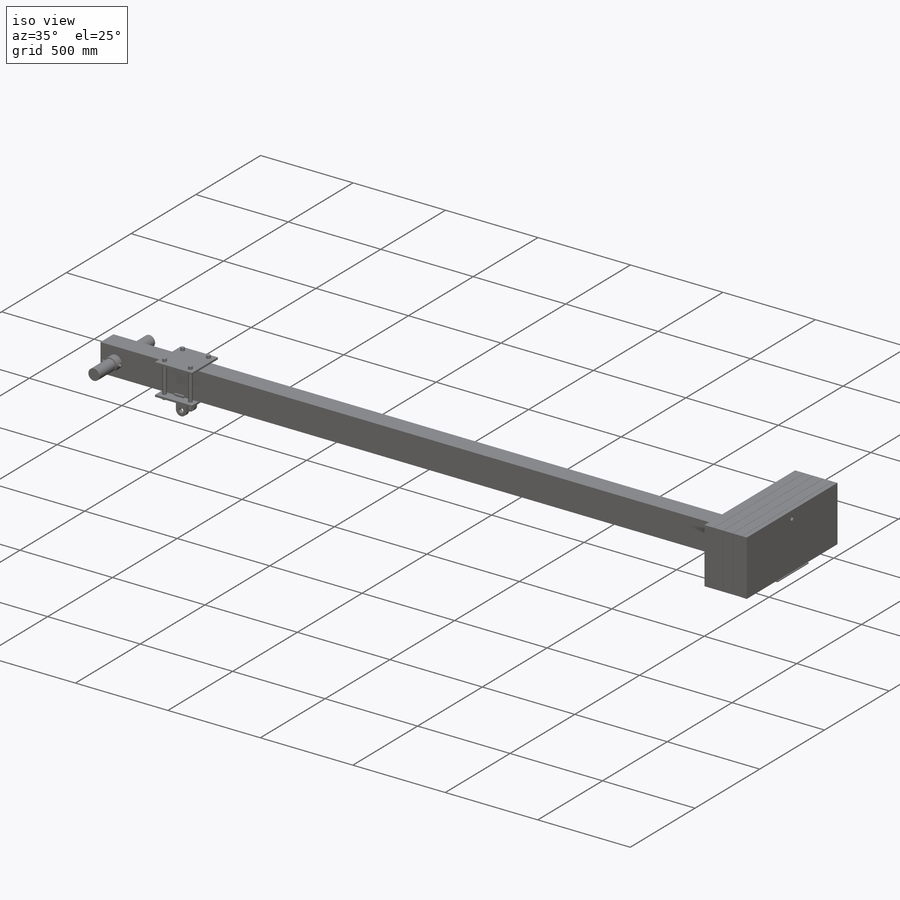
[diagram: iso view]
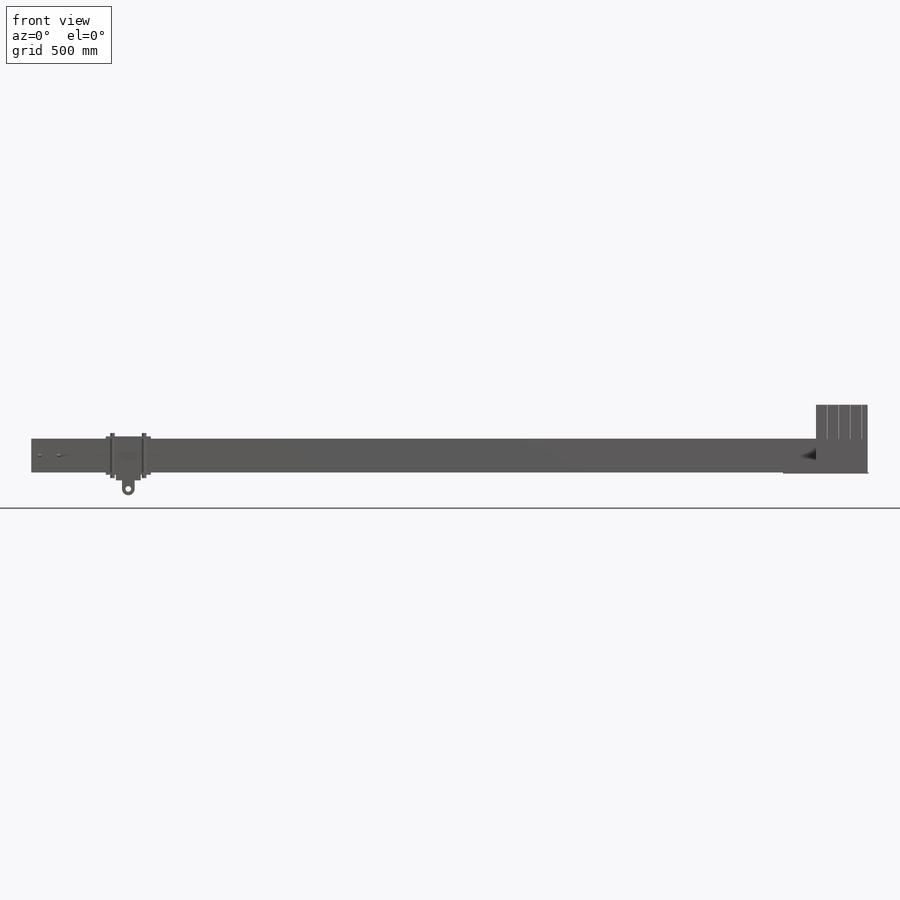
[diagram: front view]
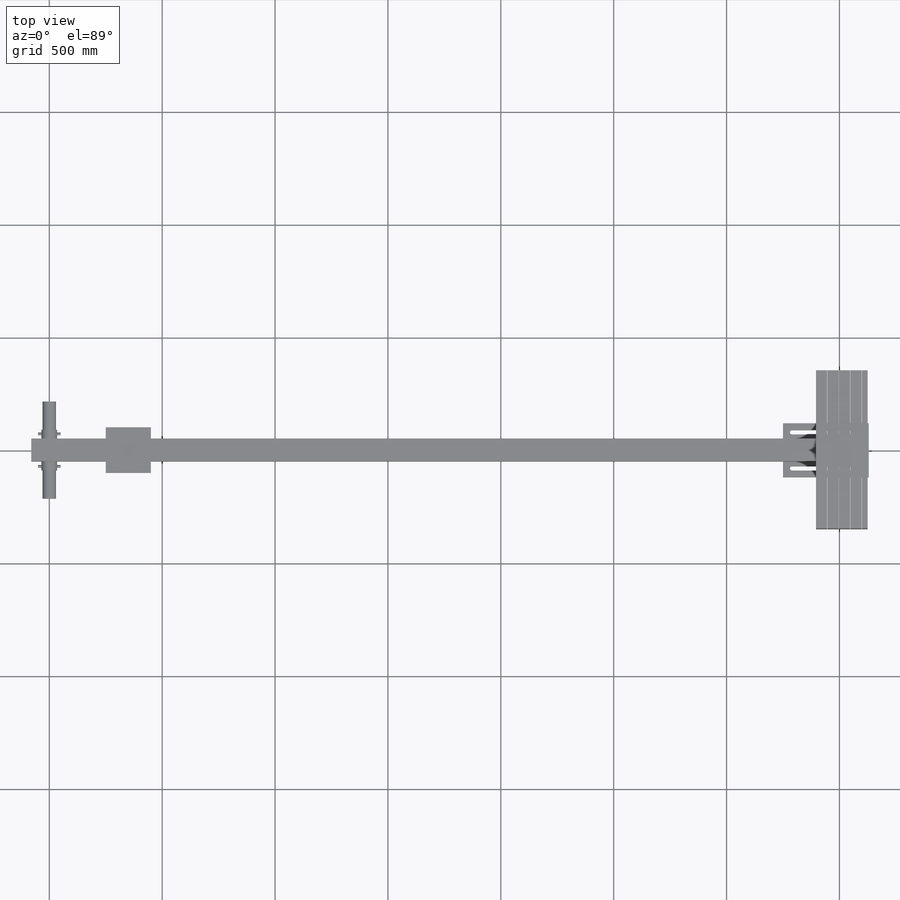
[diagram: top view]
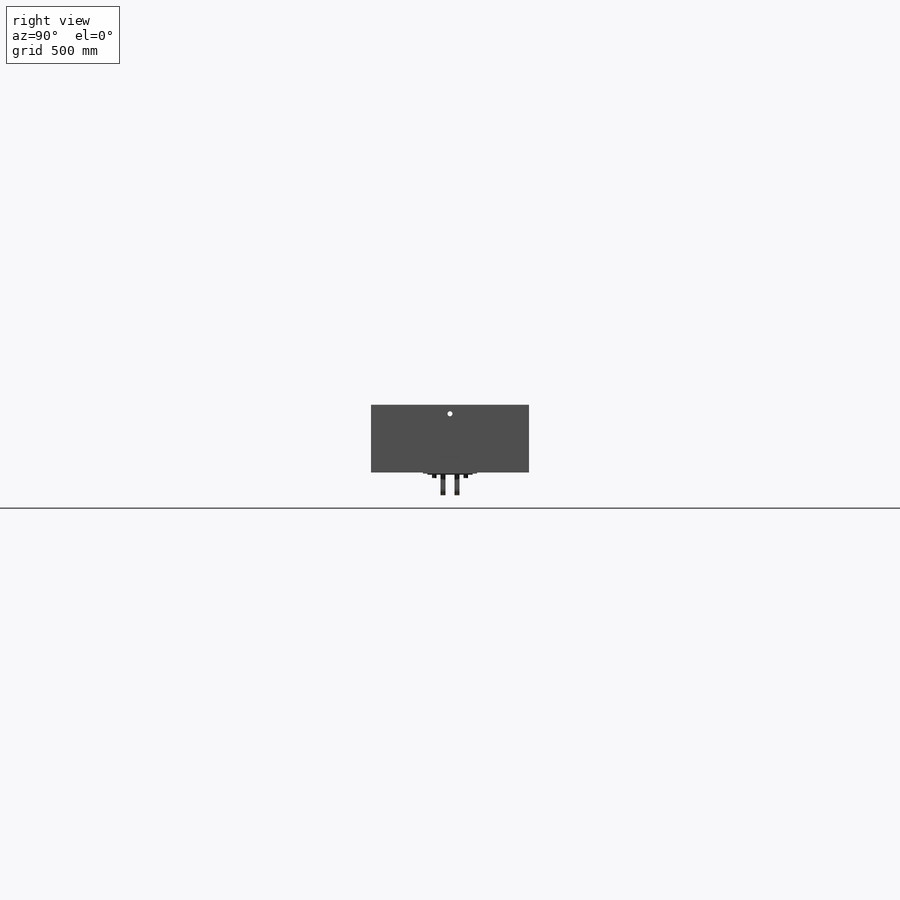
[diagram: right view]
SOLIDWORKS PART (.sldprt)
format: sldprt  version: not decoded by parser v0  size: 773,632 bytes
history: native  units: mm
features: sketch x24, extrude x18, cut_extrude x8, material x1 (+12 scaffold rows collapsed)
feature tree (63):
  scaffold x12  (default folders/planes/origin — collapsed)
  material  "Plain Carbon Steel"
  sketch  "Sketch1"  dims[D1=3600.0mm D2=150.0mm D3=300.0mm D4=50.0mm D5=1.0mm D6=80.0mm]
  extrude  "Boss-Extrude1"  Depth=100mm
  sketch  "Sketch2"  dims[D1=6.0mm D2=6.0mm]
  cut_extrude  "Cut-Extrude1"  Depth=88mm
  sketch  "Sketch3"  dims[D1=0.0mm D2=0.0mm]
  extrude  "Boss-Extrude2"  Depth=700mm
  sketch  "Sketch6"  dims[D1=200.0mm D2=10.0mm D3=350.0mm]
  extrude  "Boss-Extrude4"  Depth=200mm
  sketch  "Sketch14"  dims[D1=70.0mm]
  cut_extrude  "Cut-Extrude5"  Depth=192mm
  sketch  "Sketch15"  dims[D1=70.0mm D2=60.0mm]
  extrude  "Boss-Extrude9"  Depth=180mm
  sketch  "Sketch8"  dims[D1=60.0mm]
  extrude  "Boss-Extrude6"  Depth=430mm
  sketch  "Sketch9"  dims[D3=28.0mm D4=25.0mm D1=25.0mm D2=110.0mm D5=38.0mm]
  extrude  "Boss-Extrude7"  Depth=84mm
  sketch  "Sketch10"  dims[D1=40.0mm]
  cut_extrude  "Cut-Extrude3"  Depth=170mm
  sketch  "Sketch11"  dims[D3=20.0mm D1=30.0mm D2=30.0mm]
  extrude  "Boss-Extrude8"  Depth=100mm
  sketch  "Sketch24"  dims[D1=10.0mm D2=50.0mm]
  extrude  "Boss-Extrude15"  Depth=10mm
  sketch  "Sketch25"
  extrude  "Boss-Extrude16"  Depth=10mm
  sketch  "Sketch16"  dims[D1=20.0mm D2=70.0mm D3=70.0mm D4=350.0mm]
  extrude  "Boss-Extrude10"  Depth=5mm
  sketch  "Sketch17"  dims[c1.D1=135.0deg c1.D2=10.0mm c1.D3=350.0mm c1.D4=110.0mm c1.D5=149.1mm c2.D1=0.1mm c2.D2=5.0mm c2.D3=1.0mm c2.D4=~8.799584mm c3.D4=135.0deg c3.D5=10.0mm]
  extrude  "Boss-Extrude11"  Depth=50mm
  sketch  "Sketch18"
  extrude  "Block1-2"  [1 undecoded]
  extrude  "Boss-Extrude12"  Depth=50mm
  sketch  "Sketch19"
  extrude  "Block1-4"  [1 undecoded]
  extrude  "Boss-Extrude13"  Depth=50mm
  sketch  "Sketch20"
  extrude  "Block1-6"  [1 undecoded]
  extrude  "Boss-Extrude14"  Depth=50mm
  sketch  "Sketch21"  dims[D1=18.0mm D2=60.0mm D3=40.0mm D4=80.0mm]
  cut_extrude  "Cut-Extrude6"  [1 undecoded]
  sketch  "Sketch22"  dims[D2=16.0mm D3=16.0mm D1=80.0mm]
  cut_extrude  "Cut-Extrude7"  Depth=30mm
  sketch  "Sketch23"  dims[D2=22.0mm D1=40.0mm]
  cut_extrude  "Cut-Extrude8"  [1 undecoded]
  sketch  "Sketch26"  dims[D1=0.0mm]
  cut_extrude  "Cut-Extrude9"  [1 undecoded]
  sketch  "Sketch27"
  sketch  "Sketch28"  dims[D1=12.0mm D2=18.0mm]
  extrude  "Boss-Extrude17"  Depth=100mm
  sketch  "Sketch29"
  cut_extrude  "Cut-Extrude10"  Depth=25mm
decode coverage: 38 of 50 modeling features carry decoded parameters
note: ~ marks probable driven/reference dimensions
note: 6 parameter values undecoded
summary: no parameter record found for 6 features
note: suppression state not decoded; provenance and decode notes live in map.json
